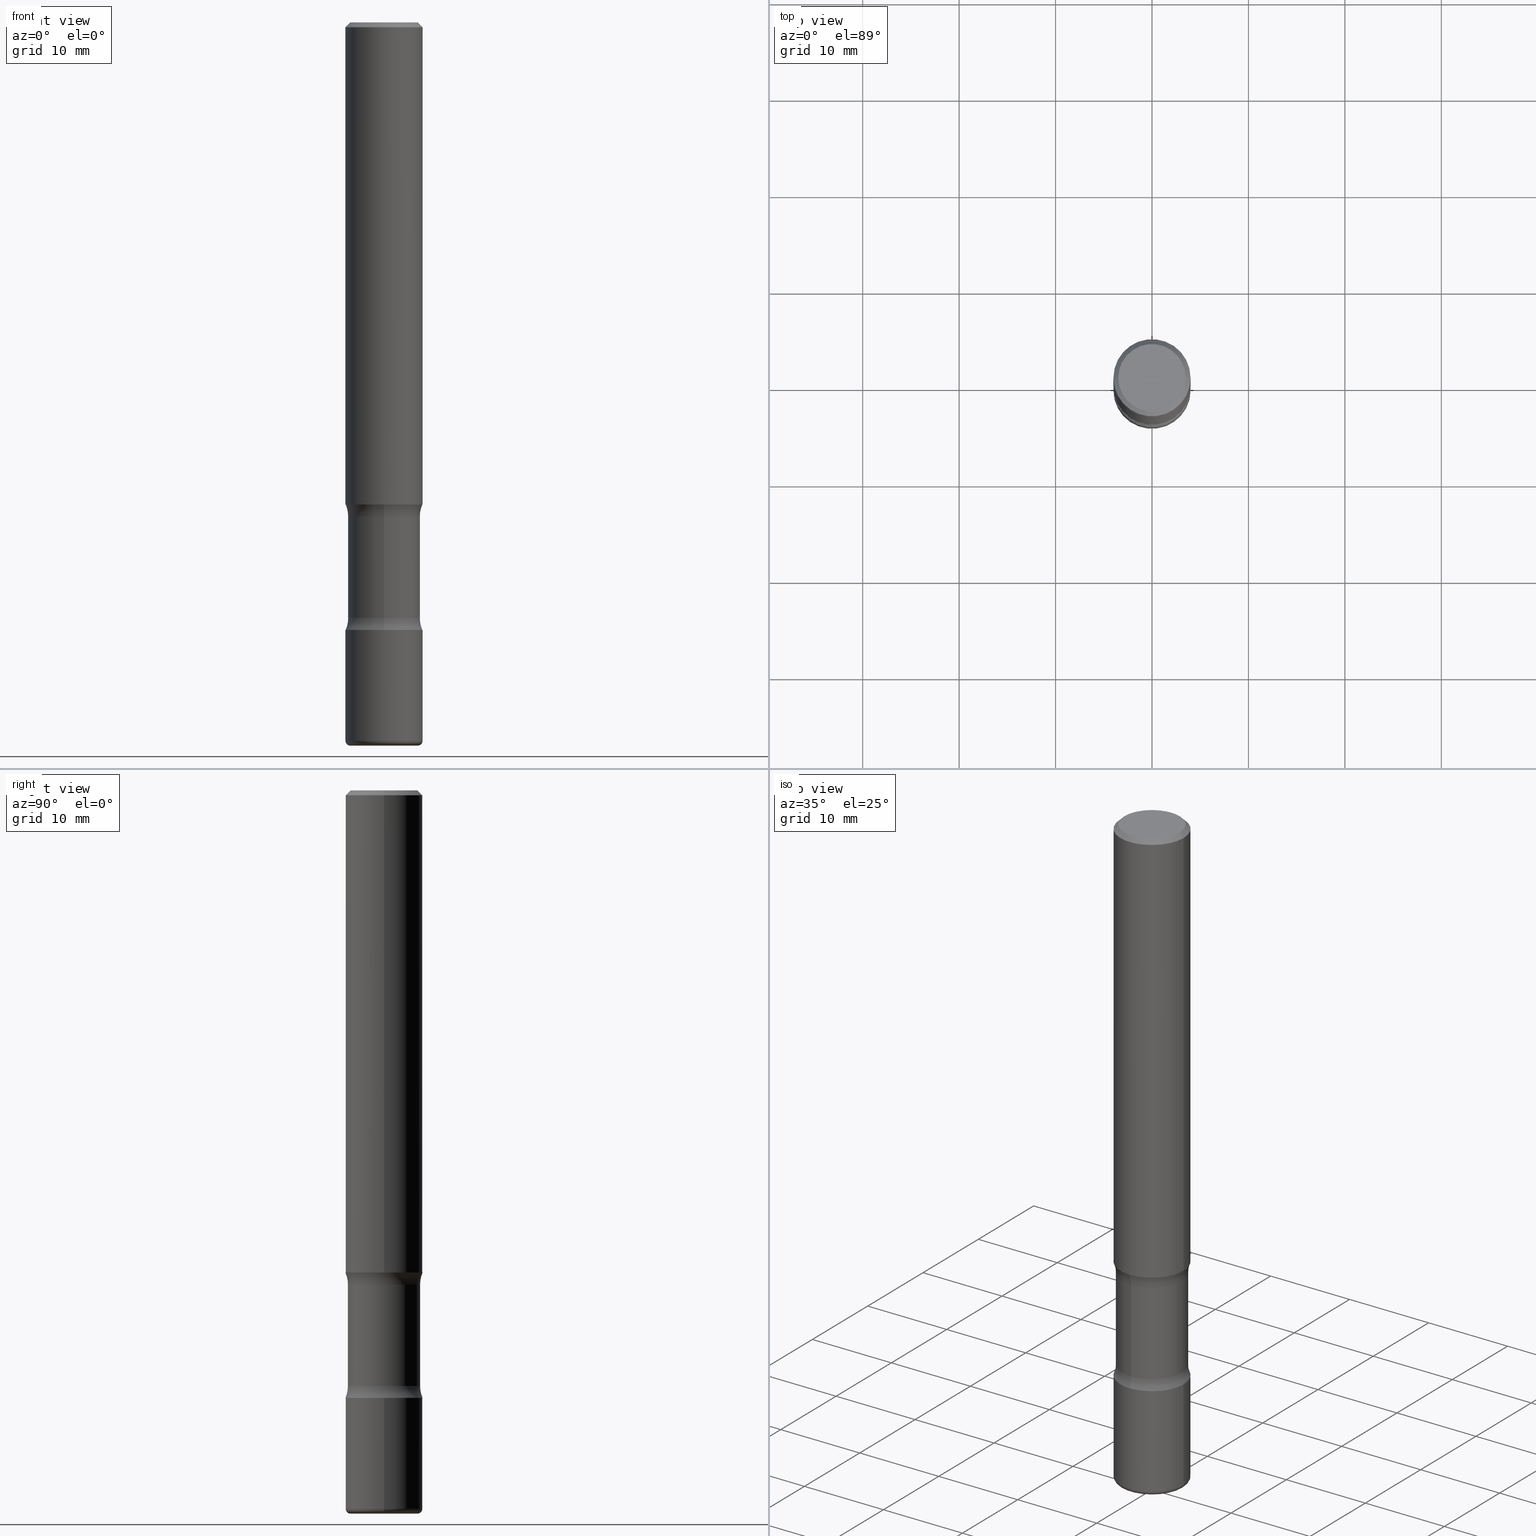
[diagram: canonical four-view strip — front | top / right | iso, engineering-drawing reading convention]
A machine part, canonical four-view strip (front | top / right | iso — engineering-drawing reading convention). The complete STEP part file that produces these views, byte-faithful:
ISO-10303-21;
HEADER;
FILE_DESCRIPTION (( 'STEP AP203' ),
    '1' );
FILE_NAME ('44794.STEP',
    '2024-03-02T03:23:53',
    ( '' ),
    ( '' ),
    'SwSTEP 2.0',
    'SolidWorks 2023',
    '' );
FILE_SCHEMA (( 'CONFIG_CONTROL_DESIGN' ));
ENDSEC;

DATA;
#1 = PRODUCT_RELATED_PRODUCT_CATEGORY ( 'detail', '', ( #180 ) ) ;
#2 = DIRECTION ( 'NONE',  ( 6.982962677686265133E-15, 1.000000000000000000, -3.707971487837479733E-15 ) ) ;
#3 = TOROIDAL_SURFACE ( 'NONE', #184, 0.1378000000000001724, 0.01969999999999987733 ) ;
#4 =( GEOMETRIC_REPRESENTATION_CONTEXT ( 3 ) GLOBAL_UNCERTAINTY_ASSIGNED_CONTEXT ( ( #381 ) ) GLOBAL_UNIT_ASSIGNED_CONTEXT ( ( #318, #111, #44 ) ) REPRESENTATION_CONTEXT ( 'NONE', 'WORKASPACE' ) );
#5 = DIRECTION ( 'NONE',  ( -6.982962677686266711E-15, -1.000000000000000000, 3.491481338843145583E-15 ) ) ;
#6 = EDGE_CURVE ( 'NONE', #47, #263, #469, .T. ) ;
#7 = DIRECTION ( 'NONE',  ( -1.000000000000000000, 6.982962677686265922E-15, -4.883557194083112340E-29 ) ) ;
#8 = ORIENTED_EDGE ( 'NONE', *, *, #343, .F. ) ;
#9 = DIRECTION ( 'NONE',  ( -2.445468806185136597E-29, 3.491481338843145583E-15, 1.000000000000000000 ) ) ;
#10 = CLOSED_SHELL ( 'NONE', ( #477, #241, #301, #361, #196, #174 ) ) ;
#11 = ORIENTED_EDGE ( 'NONE', *, *, #158, .F. ) ;
#12 = CIRCLE ( 'NONE', #479, 0.1250000000000000555 ) ;
#13 = ORGANIZATION ( 'UNSPECIFIED', 'UNSPECIFIED', '' ) ;
#14 = DIRECTION ( 'NONE',  ( 1.000000000000000000, -6.982962677686273021E-15, 4.883557194083115143E-29 ) ) ;
#15 = ORIENTED_EDGE ( 'NONE', *, *, #271, .T. ) ;
#16 = DIRECTION ( 'NONE',  ( -6.982962677686265922E-15, -1.000000000000000000, 0.000000000000000000 ) ) ;
#17 = ORIENTED_EDGE ( 'NONE', *, *, #146, .T. ) ;
#18 = CC_DESIGN_PERSON_AND_ORGANIZATION_ASSIGNMENT ( #415, #474, ( #423 ) ) ;
#19 = DIRECTION ( 'NONE',  ( 1.000000000000000000, -6.982962677686267499E-15, 4.876176775795935232E-29 ) ) ;
#20 = ORIENTED_EDGE ( 'NONE', *, *, #145, .F. ) ;
#21 = EDGE_CURVE ( 'NONE', #101, #216, #395, .T. ) ;
#22 = AXIS2_PLACEMENT_3D ( 'NONE', #517, #120, #287 ) ;
#23 = LOCAL_TIME ( 22, 23, 53.00000000000000000, #251 ) ;
#24 = CARTESIAN_POINT ( 'NONE',  ( 4.813905344975440714E-29, -6.872981015512730918E-15, -1.968499999999999694 ) ) ;
#25 = DIRECTION ( 'NONE',  ( 2.474888810202925163E-29, -3.449350218607033250E-15, -1.000000000000000000 ) ) ;
#26 = VERTEX_POINT ( 'NONE', #452 ) ;
#27 = CARTESIAN_POINT ( 'NONE',  ( 7.220980290903470182E-29, -1.030964609733603853E-14, -2.952799999999999869 ) ) ;
#28 = DIRECTION ( 'NONE',  ( 2.474888810202925163E-29, -3.449350218607033250E-15, -1.000000000000000000 ) ) ;
#29 = DIRECTION ( 'NONE',  ( 1.000000000000000000, -6.982962677686265922E-15, 4.876176775795935232E-29 ) ) ;
#30 = DIRECTION ( 'NONE',  ( 2.474888810202925163E-29, -3.449350218607033250E-15, -1.000000000000000000 ) ) ;
#31 = EDGE_CURVE ( 'NONE', #99, #401, #510, .T. ) ;
#32 = DIRECTION ( 'NONE',  ( 0.000000000000000000, 0.000000000000000000, 1.000000000000000000 ) ) ;
#33 = DIRECTION ( 'NONE',  ( 6.860497997771530774E-15, 1.000000000000000000, 0.000000000000000000 ) ) ;
#34 = PERSON_AND_ORGANIZATION ( #383, #13 ) ;
#35 = EDGE_CURVE ( 'NONE', #199, #47, #281, .T. ) ;
#36 = CARTESIAN_POINT ( 'NONE',  ( 7.172804555421624566E-29, -1.024086391496083050E-14, -2.933100000000000041 ) ) ;
#37 = EDGE_CURVE ( 'NONE', #199, #439, #192, .T. ) ;
#38 = DATE_AND_TIME ( #420, #126 ) ;
#39 = CIRCLE ( 'NONE', #440, 0.1575000000000001399 ) ;
#40 = AXIS2_PLACEMENT_3D ( 'NONE', #62, #239, #280 ) ;
#41 = CYLINDRICAL_SURFACE ( 'NONE', #396, 0.1473500000000000087 ) ;
#42 = VERTEX_POINT ( 'NONE', #112 ) ;
#43 = LINE ( 'NONE', #88, #431 ) ;
#44 =( NAMED_UNIT ( * ) SI_UNIT ( $, .STERADIAN. ) SOLID_ANGLE_UNIT ( ) );
#45 = DIRECTION ( 'NONE',  ( 2.474888810202925163E-29, -3.449350218607033250E-15, -1.000000000000000000 ) ) ;
#46 = EDGE_CURVE ( 'NONE', #496, #173, #520, .T. ) ;
#47 = VERTEX_POINT ( 'NONE', #461 ) ;
#48 = CARTESIAN_POINT ( 'NONE',  ( 1.901809885267903923E-15, 0.2723499999999929866, -2.017840424602957317 ) ) ;
#49 = AXIS2_PLACEMENT_3D ( 'NONE', #123, #211, #291 ) ;
#50 = FACE_OUTER_BOUND ( 'NONE', #273, .T. ) ;
#51 = ORIENTED_EDGE ( 'NONE', *, *, #424, .T. ) ;
#52 = PLANE ( 'NONE',  #422 ) ;
#53 = ORIENTED_EDGE ( 'NONE', *, *, #386, .F. ) ;
#54 = CARTESIAN_POINT ( 'NONE',  ( 0.1575000000000000289, -1.099816621735587283E-15, 7.679978421878599434E-30 ) ) ;
#55 = ORIENTED_EDGE ( 'NONE', *, *, #402, .F. ) ;
#56 = CIRCLE ( 'NONE', #141, 0.1575000000000001399 ) ;
#57 = AXIS2_PLACEMENT_3D ( 'NONE', #314, #324, #326 ) ;
#58 = DIRECTION ( 'NONE',  ( -6.982962677686265922E-15, -1.000000000000000000, 3.449350218607032856E-15 ) ) ;
#59 = EDGE_LOOP ( 'NONE', ( #310, #17, #220, #446 ) ) ;
#60 = CARTESIAN_POINT ( 'NONE',  ( 6.065740826861612418E-29, -8.660270312866537270E-15, -2.480399999999999494 ) ) ;
#61 = ORIENTED_EDGE ( 'NONE', *, *, #212, .T. ) ;
#62 = CARTESIAN_POINT ( 'NONE',  ( 4.934565814225900815E-29, -7.045252187264551691E-15, -2.017840424602956428 ) ) ;
#63 = DIRECTION ( 'NONE',  ( 2.474888810202925163E-29, -3.449350218607033250E-15, -1.000000000000000000 ) ) ;
#64 = CIRCLE ( 'NONE', #157, 0.01969999999999985998 ) ;
#65 = TOROIDAL_SURFACE ( 'NONE', #142, 0.2723500000000000365, 0.1250000000000000000 ) ;
#66 = CARTESIAN_POINT ( 'NONE',  ( 7.220980290903470182E-29, -1.030964609733603853E-14, -2.952799999999999869 ) ) ;
#67 = CARTESIAN_POINT ( 'NONE',  ( 6.065740826861612418E-29, -8.660270312866537270E-15, -2.480399999999999494 ) ) ;
#68 = EDGE_CURVE ( 'NONE', #216, #101, #227, .T. ) ;
#69 = CYLINDRICAL_SURFACE ( 'NONE', #547, 0.1575000000000000289 ) ;
#70 = DIRECTION ( 'NONE',  ( 2.474888810202925163E-29, -3.449350218607033250E-15, -1.000000000000000000 ) ) ;
#71 = PLANE ( 'NONE',  #490 ) ;
#72 = DIRECTION ( 'NONE',  ( 6.982962677686265133E-15, 1.000000000000000000, -3.707971487837480522E-15 ) ) ;
#73 = CIRCLE ( 'NONE', #375, 0.1473499999999999810 ) ;
#74 = DIRECTION ( 'NONE',  ( 1.000000000000000000, -6.982962677686266711E-15, 0.000000000000000000 ) ) ;
#75 = ORIENTED_EDGE ( 'NONE', *, *, #377, .F. ) ;
#76 = DATE_TIME_ROLE ( 'creation_date' ) ;
#77 = CARTESIAN_POINT ( 'NONE',  ( -0.1575000000000001399, -8.331462305091523914E-15, -2.480399999999999494 ) ) ;
#78 = PERSON_AND_ORGANIZATION_ROLE ( 'classification_officer' ) ;
#79 = DIRECTION ( 'NONE',  ( -2.445468806185136877E-29, 3.491481338843145188E-15, 1.000000000000000000 ) ) ;
#80 = EDGE_CURVE ( 'NONE', #439, #401, #480, .T. ) ;
#81 = AXIS2_PLACEMENT_3D ( 'NONE', #321, #226, #235 ) ;
#82 = APPROVAL_STATUS ( 'not_yet_approved' ) ;
#83 = VECTOR ( 'NONE', #79, 39.37007874015748143 ) ;
#84 = DIRECTION ( 'NONE',  ( -6.982962677686265922E-15, -1.000000000000000000, 0.000000000000000000 ) ) ;
#85 = MECHANICAL_CONTEXT ( 'NONE', #221, 'mechanical' ) ;
#86 = LINE ( 'NONE', #559, #320 ) ;
#87 = DATE_AND_TIME ( #373, #23 ) ;
#88 = CARTESIAN_POINT ( 'NONE',  ( 0.1574999999999999178, -1.150358061425878486E-15, -0.02000000000000000042 ) ) ;
#89 = DIMENSIONAL_EXPONENTS ( 1.000000000000000000, 0.000000000000000000, 0.000000000000000000, 0.000000000000000000, 0.000000000000000000, 0.000000000000000000, 0.000000000000000000 ) ;
#90 = ORIENTED_EDGE ( 'NONE', *, *, #6, .T. ) ;
#91 = DIRECTION ( 'NONE',  ( 2.474888810202925163E-29, -3.449350218607032856E-15, -1.000000000000000000 ) ) ;
#92 = CIRCLE ( 'NONE', #110, 0.01969999999999985998 ) ;
#93 = EDGE_LOOP ( 'NONE', ( #155, #305 ) ) ;
#94 = DIRECTION ( 'NONE',  ( -2.445468806185136877E-29, 3.491481338843145188E-15, 1.000000000000000000 ) ) ;
#95 = EDGE_LOOP ( 'NONE', ( #408, #144 ) ) ;
#96 = EDGE_CURVE ( 'NONE', #439, #199, #73, .T. ) ;
#97 = ADVANCED_FACE ( 'NONE', ( #109 ), #153, .F. ) ;
#98 = CARTESIAN_POINT ( 'NONE',  ( 9.601573681818610811E-16, 0.1374999999999999278, -4.779444278458821021E-16 ) ) ;
#99 = VERTEX_POINT ( 'NONE', #106 ) ;
#100 = CARTESIAN_POINT ( 'NONE',  ( 0.1374999999999999278, -1.046838268059731900E-15, 4.268512490107428597E-18 ) ) ;
#101 = VERTEX_POINT ( 'NONE', #448 ) ;
#102 = AXIS2_PLACEMENT_3D ( 'NONE', #265, #259, #131 ) ;
#103 = CARTESIAN_POINT ( 'NONE',  ( 4.813905344975440714E-29, -6.872981015512730918E-15, -1.968499999999999694 ) ) ;
#104 = ORIENTED_EDGE ( 'NONE', *, *, #96, .T. ) ;
#105 = PRODUCT_DEFINITION ( 'UNKNOWN', '', #423, #529 ) ;
#106 = CARTESIAN_POINT ( 'NONE',  ( 1.099816621735635798E-15, 0.1574999999999932565, -1.968500000000000361 ) ) ;
#107 = EDGE_CURVE ( 'NONE', #173, #496, #364, .T. ) ;
#108 = CARTESIAN_POINT ( 'NONE',  ( 0.1575000000000001676, -7.972797637248319976E-15, -1.968499999999999694 ) ) ;
#109 = FACE_OUTER_BOUND ( 'NONE', #93, .T. ) ;
#110 = AXIS2_PLACEMENT_3D ( 'NONE', #476, #311, #300 ) ;
#111 =( NAMED_UNIT ( * ) PLANE_ANGLE_UNIT ( ) SI_UNIT ( $, .RADIAN. ) );
#112 = CARTESIAN_POINT ( 'NONE',  ( -0.1374999999999999278, 9.950721815702923357E-16, 4.268512490093574228E-18 ) ) ;
#113 = APPLICATION_CONTEXT ( 'configuration controlled 3d designs of mechanical parts and assemblies' ) ;
#114 = CARTESIAN_POINT ( 'NONE',  ( 7.234878300801473340E-29, -1.028974335613649852E-14, -2.952799999999999869 ) ) ;
#115 = EDGE_LOOP ( 'NONE', ( #549, #15, #204, #346 ) ) ;
#116 = VERTEX_POINT ( 'NONE', #208 ) ;
#117 = AXIS2_PLACEMENT_3D ( 'NONE', #410, #233, #72 ) ;
#118 = COORDINATED_UNIVERSAL_TIME_OFFSET ( 5, 0, .BEHIND. ) ;
#119 = AXIS2_PLACEMENT_3D ( 'NONE', #66, #507, #447 ) ;
#120 = DIRECTION ( 'NONE',  ( -2.445468806185136597E-29, 3.491481338843145583E-15, 1.000000000000000000 ) ) ;
#121 = APPROVAL_ROLE ( '' ) ;
#122 = DIRECTION ( 'NONE',  ( -2.445468806185136597E-29, 3.491481338843145583E-15, 1.000000000000000000 ) ) ;
#123 = CARTESIAN_POINT ( 'NONE',  ( 0.000000000000000000, 0.000000000000000000, 0.000000000000000000 ) ) ;
#124 = PERSON_AND_ORGANIZATION ( #383, #13 ) ;
#125 = AXIS2_PLACEMENT_3D ( 'NONE', #24, #541, #147 ) ;
#126 = LOCAL_TIME ( 22, 23, 53.00000000000000000, #465 ) ;
#127 = DIRECTION ( 'NONE',  ( 0.7071067811865472397, -7.319954787623254468E-15, -0.7071067811865477948 ) ) ;
#128 = FACE_OUTER_BOUND ( 'NONE', #268, .T. ) ;
#129 = EDGE_LOOP ( 'NONE', ( #376, #8, #380, #51 ) ) ;
#130 = CARTESIAN_POINT ( 'NONE',  ( -1.868456629693017352E-15, -0.2723500000000085297, -2.431059575397042316 ) ) ;
#131 = DIRECTION ( 'NONE',  ( -1.000000000000000000, 6.982962677686266711E-15, 0.000000000000000000 ) ) ;
#132 = EDGE_CURVE ( 'NONE', #439, #263, #253, .T. ) ;
#133 = ORIENTED_EDGE ( 'NONE', *, *, #37, .T. ) ;
#134 = DIRECTION ( 'NONE',  ( 1.000000000000000000, -6.860497997771530774E-15, 4.841314837039559601E-29 ) ) ;
#135 = VERTEX_POINT ( 'NONE', #77 ) ;
#136 = CC_DESIGN_PERSON_AND_ORGANIZATION_ASSIGNMENT ( #552, #288, ( #423 ) ) ;
#137 = DIRECTION ( 'NONE',  ( 6.982962677686265922E-15, 1.000000000000000000, -3.449350218607033250E-15 ) ) ;
#138 = ORIENTED_EDGE ( 'NONE', *, *, #392, .F. ) ;
#139 = CARTESIAN_POINT ( 'NONE',  ( 0.1378000000000001724, -1.127189835432120758E-14, -2.952799999999999869 ) ) ;
#140 = EDGE_LOOP ( 'NONE', ( #492, #250 ) ) ;
#141 = AXIS2_PLACEMENT_3D ( 'NONE', #433, #309, #223 ) ;
#142 = AXIS2_PLACEMENT_3D ( 'NONE', #359, #25, #316 ) ;
#143 = DIRECTION ( 'NONE',  ( 2.438088387897960049E-29, -3.491481338843145188E-15, -1.000000000000000000 ) ) ;
#144 = ORIENTED_EDGE ( 'NONE', *, *, #482, .F. ) ;
#145 = EDGE_CURVE ( 'NONE', #298, #416, #64, .T. ) ;
#146 = EDGE_CURVE ( 'NONE', #173, #557, #86, .T. ) ;
#147 = DIRECTION ( 'NONE',  ( 1.000000000000000000, -6.982962677686267499E-15, 0.000000000000000000 ) ) ;
#148 = DIRECTION ( 'NONE',  ( 1.000000000000000000, -6.982962677686273021E-15, 4.883557194083115143E-29 ) ) ;
#149 = ORIENTED_EDGE ( 'NONE', *, *, #308, .F. ) ;
#150 = AXIS2_PLACEMENT_3D ( 'NONE', #283, #63, #414 ) ;
#151 = CIRCLE ( 'NONE', #57, 0.1574999999999999178 ) ;
#152 = DIRECTION ( 'NONE',  ( -1.000000000000000000, 6.982962677686265922E-15, -4.876176775795935793E-29 ) ) ;
#153 = PLANE ( 'NONE',  #292 ) ;
#154 = LENGTH_MEASURE_WITH_UNIT ( LENGTH_MEASURE( 0.02539999999999999897 ), #190 );
#155 = ORIENTED_EDGE ( 'NONE', *, *, #454, .T. ) ;
#156 = ORIENTED_EDGE ( 'NONE', *, *, #146, .F. ) ;
#157 = AXIS2_PLACEMENT_3D ( 'NONE', #206, #5, #388 ) ;
#158 = EDGE_CURVE ( 'NONE', #42, #557, #385, .T. ) ;
#159 = DATE_TIME_ROLE ( 'classification_date' ) ;
#160 = FACE_OUTER_BOUND ( 'NONE', #531, .T. ) ;
#161 = ORIENTED_EDGE ( 'NONE', *, *, #308, .T. ) ;
#162 = APPROVAL_DATE_TIME ( #38, #238 ) ;
#163 = CARTESIAN_POINT ( 'NONE',  ( 7.234878300801473340E-29, -1.028974335613649852E-14, -2.952799999999999869 ) ) ;
#164 = EDGE_LOOP ( 'NONE', ( #349, #179, #485, #360 ) ) ;
#165 = SECURITY_CLASSIFICATION_LEVEL ( 'unclassified' ) ;
#166 = DIRECTION ( 'NONE',  ( 1.000000000000000000, -6.982962677686265922E-15, 4.876176775795935793E-29 ) ) ;
#167 = CONICAL_SURFACE ( 'NONE', #200, 0.1574999999999999178, 0.7853981633974479459 ) ;
#168 = CARTESIAN_POINT ( 'NONE',  ( 4.890937612370273159E-31, -6.982962677686291609E-17, -0.02000000000000000042 ) ) ;
#169 = CARTESIAN_POINT ( 'NONE',  ( 7.172804555421624566E-29, -1.024086391496083050E-14, -2.933100000000000041 ) ) ;
#170 = EDGE_CURVE ( 'NONE', #199, #99, #12, .T. ) ;
#171 = CC_DESIGN_DATE_AND_TIME_ASSIGNMENT ( #560, #159, ( #293 ) ) ;
#172 = DIRECTION ( 'NONE',  ( 6.982962677686265133E-15, 1.000000000000000000, -3.469013325287950138E-15 ) ) ;
#173 = VERTEX_POINT ( 'NONE', #289 ) ;
#174 = ADVANCED_FACE ( 'NONE', ( #511 ), #430, .T. ) ;
#175 = DIRECTION ( 'NONE',  ( -2.445468806185136597E-29, 3.491481338843145583E-15, 1.000000000000000000 ) ) ;
#176 = AXIS2_PLACEMENT_3D ( 'NONE', #327, #70, #502 ) ;
#177 = ORIENTED_EDGE ( 'NONE', *, *, #107, .T. ) ;
#178 = DIRECTION ( 'NONE',  ( 2.474888810202925163E-29, -3.449350218607033250E-15, -1.000000000000000000 ) ) ;
#179 = ORIENTED_EDGE ( 'NONE', *, *, #80, .T. ) ;
#180 = PRODUCT ( '44794', '44794', '', ( #85 ) ) ;
#181 = FACE_OUTER_BOUND ( 'NONE', #365, .T. ) ;
#182 = ORIENTED_EDGE ( 'NONE', *, *, #247, .T. ) ;
#183 = VERTEX_POINT ( 'NONE', #252 ) ;
#184 = AXIS2_PLACEMENT_3D ( 'NONE', #169, #347, #14 ) ;
#185 = APPROVAL_PERSON_ORGANIZATION ( #34, #254, #202 ) ;
#186 = ORIENTED_EDGE ( 'NONE', *, *, #247, .F. ) ;
#187 = EDGE_CURVE ( 'NONE', #298, #116, #356, .T. ) ;
#188 = CARTESIAN_POINT ( 'NONE',  ( -1.045711407310277305E-15, -0.1473500000000070587, -2.017840424602955984 ) ) ;
#189 = ORIENTED_EDGE ( 'NONE', *, *, #145, .T. ) ;
#190 =( LENGTH_UNIT ( ) NAMED_UNIT ( * ) SI_UNIT ( $, .METRE. ) );
#191 = DIRECTION ( 'NONE',  ( 1.000000000000000000, -6.860497997771530774E-15, 4.841314837039559601E-29 ) ) ;
#192 = CIRCLE ( 'NONE', #117, 0.1473499999999999810 ) ;
#193 = AXIS2_PLACEMENT_3D ( 'NONE', #262, #400, #438 ) ;
#194 = FACE_OUTER_BOUND ( 'NONE', #404, .T. ) ;
#195 = DIRECTION ( 'NONE',  ( 6.982962677686265133E-15, 1.000000000000000000, -3.707971487837480522E-15 ) ) ;
#196 = ADVANCED_FACE ( 'NONE', ( #519 ), #464, .F. ) ;
#197 = DIRECTION ( 'NONE',  ( 1.000000000000000000, -6.982962677686267499E-15, 0.000000000000000000 ) ) ;
#198 = CARTESIAN_POINT ( 'NONE',  ( 0.1575000000000001399, -1.099816621735587875E-15, 7.679978421878605039E-30 ) ) ;
#199 = VERTEX_POINT ( 'NONE', #473 ) ;
#200 = AXIS2_PLACEMENT_3D ( 'NONE', #168, #203, #522 ) ;
#201 = AXIS2_PLACEMENT_3D ( 'NONE', #282, #459, #234 ) ;
#202 = APPROVAL_ROLE ( '' ) ;
#203 = DIRECTION ( 'NONE',  ( 2.445468806185136597E-29, -3.491481338843145583E-15, -1.000000000000000000 ) ) ;
#204 = ORIENTED_EDGE ( 'NONE', *, *, #454, .F. ) ;
#205 = EDGE_CURVE ( 'NONE', #416, #533, #297, .T. ) ;
#206 = CARTESIAN_POINT ( 'NONE',  ( 0.1378000000000001724, -1.120311617194599955E-14, -2.933100000000000041 ) ) ;
#207 = PERSON_AND_ORGANIZATION ( #383, #13 ) ;
#208 = CARTESIAN_POINT ( 'NONE',  ( -0.1378000000000001724, -9.226138656798647747E-15, -2.952799999999999869 ) ) ;
#209 = AXIS2_PLACEMENT_3D ( 'NONE', #351, #175, #532 ) ;
#210 = AXIS2_PLACEMENT_3D ( 'NONE', #389, #445, #172 ) ;
#211 = DIRECTION ( 'NONE',  ( -2.445468806185136597E-29, 3.491481338843145583E-15, 1.000000000000000000 ) ) ;
#212 = EDGE_CURVE ( 'NONE', #183, #416, #236, .T. ) ;
#213 = CARTESIAN_POINT ( 'NONE',  ( 1.901809885267914178E-15, 0.2723499999999915433, -2.431059575397044092 ) ) ;
#214 = ORIENTED_EDGE ( 'NONE', *, *, #386, .T. ) ;
#215 = DIRECTION ( 'NONE',  ( -1.000000000000000000, 6.982962677686265922E-15, -4.876176775795935793E-29 ) ) ;
#216 = VERTEX_POINT ( 'NONE', #426 ) ;
#217 = EDGE_CURVE ( 'NONE', #416, #183, #39, .T. ) ;
#218 = AXIS2_PLACEMENT_3D ( 'NONE', #249, #122, #336 ) ;
#219 = CC_DESIGN_APPROVAL ( #254, ( #423 ) ) ;
#220 = ORIENTED_EDGE ( 'NONE', *, *, #506, .F. ) ;
#221 = APPLICATION_CONTEXT ( 'configuration controlled 3d designs of mechanical parts and assemblies' ) ;
#222 = EDGE_LOOP ( 'NONE', ( #333, #243 ) ) ;
#223 = DIRECTION ( 'NONE',  ( 1.000000000000000000, -6.982962677686268288E-15, 0.000000000000000000 ) ) ;
#224 = ORIENTED_EDGE ( 'NONE', *, *, #21, .T. ) ;
#225 = DIRECTION ( 'NONE',  ( -2.445468806185136597E-29, 3.491481338843145583E-15, 1.000000000000000000 ) ) ;
#226 = DIRECTION ( 'NONE',  ( 2.474888810202925163E-29, -3.449350218607033250E-15, -1.000000000000000000 ) ) ;
#227 = CIRCLE ( 'NONE', #255, 0.1575000000000001399 ) ;
#228 = CC_DESIGN_APPROVAL ( #238, ( #293 ) ) ;
#229 = ADVANCED_FACE ( 'NONE', ( #160 ), #41, .T. ) ;
#230 = FACE_OUTER_BOUND ( 'NONE', #317, .T. ) ;
#231 = EDGE_LOOP ( 'NONE', ( #53, #515, #444, #90 ) ) ;
#232 = DIRECTION ( 'NONE',  ( -2.445468806185136597E-29, 3.491481338843145583E-15, 1.000000000000000000 ) ) ;
#233 = DIRECTION ( 'NONE',  ( 2.474888810202925163E-29, -3.449350218607033250E-15, -1.000000000000000000 ) ) ;
#234 = DIRECTION ( 'NONE',  ( 1.000000000000000000, -6.982962677686268288E-15, 0.000000000000000000 ) ) ;
#235 = DIRECTION ( 'NONE',  ( 6.982962677686266711E-15, 1.000000000000000000, -3.707971487837479733E-15 ) ) ;
#236 = CIRCLE ( 'NONE', #545, 0.1575000000000001399 ) ;
#237 = AXIS2_PLACEMENT_3D ( 'NONE', #213, #7, #16 ) ;
#238 = APPROVAL ( #82, 'UNSPECIFIED' ) ;
#239 = DIRECTION ( 'NONE',  ( 2.474888810202925163E-29, -3.449350218607033250E-15, -1.000000000000000000 ) ) ;
#240 = DIRECTION ( 'NONE',  ( 6.982962677686265133E-15, 1.000000000000000000, -3.469013325287950138E-15 ) ) ;
#241 = ADVANCED_FACE ( 'NONE', ( #514 ), #167, .T. ) ;
#242 = DIRECTION ( 'NONE',  ( -1.000000000000000000, 6.982962677686265922E-15, -4.883557194083112340E-29 ) ) ;
#243 = ORIENTED_EDGE ( 'NONE', *, *, #377, .T. ) ;
#244 = APPLICATION_PROTOCOL_DEFINITION ( 'international standard', 'config_control_design', 1994, #113 ) ;
#245 = CARTESIAN_POINT ( 'NONE',  ( -0.1574999999999999178, 1.029986994958723590E-15, -0.02000000000000000042 ) ) ;
#246 = CONICAL_SURFACE ( 'NONE', #102, 0.1574999999999999178, 0.7853981633974479459 ) ;
#247 = EDGE_CURVE ( 'NONE', #263, #47, #449, .T. ) ;
#248 = CIRCLE ( 'NONE', #201, 0.1575000000000001399 ) ;
#249 = CARTESIAN_POINT ( 'NONE',  ( 7.220980290903470182E-29, -1.030964609733603853E-14, -2.952799999999999869 ) ) ;
#250 = ORIENTED_EDGE ( 'NONE', *, *, #107, .F. ) ;
#251 = COORDINATED_UNIVERSAL_TIME_OFFSET ( 5, 0, .BEHIND. ) ;
#252 = CARTESIAN_POINT ( 'NONE',  ( -0.1575000000000000844, -9.121759106138672895E-15, -2.933100000000000041 ) ) ;
#253 = LINE ( 'NONE', #340, #338 ) ;
#254 = APPROVAL ( #417, 'UNSPECIFIED' ) ;
#255 = AXIS2_PLACEMENT_3D ( 'NONE', #67, #28, #240 ) ;
#256 = AXIS2_PLACEMENT_3D ( 'NONE', #114, #538, #455 ) ;
#257 = PLANE ( 'NONE',  #488 ) ;
#258 = EDGE_LOOP ( 'NONE', ( #156, #177, #535, #270 ) ) ;
#259 = DIRECTION ( 'NONE',  ( 2.445468806185136597E-29, -3.491481338843145583E-15, -1.000000000000000000 ) ) ;
#260 = ORIENTED_EDGE ( 'NONE', *, *, #264, .T. ) ;
#261 = ADVANCED_FACE ( 'NONE', ( #128 ), #475, .T. ) ;
#262 = CARTESIAN_POINT ( 'NONE',  ( 5.945080357611152317E-29, -8.487999141114716497E-15, -2.431059575397043204 ) ) ;
#263 = VERTEX_POINT ( 'NONE', #468 ) ;
#264 = EDGE_CURVE ( 'NONE', #390, #26, #43, .T. ) ;
#265 = CARTESIAN_POINT ( 'NONE',  ( 4.890937612370273159E-31, -6.982962677686291609E-17, -0.02000000000000000042 ) ) ;
#266 = TOROIDAL_SURFACE ( 'NONE', #470, 0.2723499999999999810, 0.1250000000000000555 ) ;
#267 = CC_DESIGN_SECURITY_CLASSIFICATION ( #293, ( #423 ) ) ;
#268 = EDGE_LOOP ( 'NONE', ( #434, #61, #315, #523 ) ) ;
#269 = DIRECTION ( 'NONE',  ( 2.438088387897960049E-29, -3.491481338843145188E-15, -1.000000000000000000 ) ) ;
#270 = ORIENTED_EDGE ( 'NONE', *, *, #424, .F. ) ;
#271 = EDGE_CURVE ( 'NONE', #183, #135, #345, .T. ) ;
#272 = DIRECTION ( 'NONE',  ( -2.445468806185136597E-29, 3.491481338843145583E-15, 1.000000000000000000 ) ) ;
#273 = EDGE_LOOP ( 'NONE', ( #483, #214, #182, #138 ) ) ;
#274 = CYLINDRICAL_SURFACE ( 'NONE', #256, 0.1473500000000000087 ) ;
#275 = VECTOR ( 'NONE', #94, 39.37007874015748143 ) ;
#276 = ORIENTED_EDGE ( 'NONE', *, *, #212, .F. ) ;
#277 = LOCAL_TIME ( 22, 23, 53.00000000000000000, #384 ) ;
#278 = DIRECTION ( 'NONE',  ( -2.445468806185136597E-29, 3.491481338843145583E-15, 1.000000000000000000 ) ) ;
#279 = ADVANCED_FACE ( 'NONE', ( #484 ), #266, .F. ) ;
#280 = DIRECTION ( 'NONE',  ( 6.982962677686265922E-15, 1.000000000000000000, -3.449350218607033250E-15 ) ) ;
#281 = LINE ( 'NONE', #494, #330 ) ;
#282 = CARTESIAN_POINT ( 'NONE',  ( 6.065740826861612418E-29, -8.660270312866537270E-15, -2.480399999999999494 ) ) ;
#283 = CARTESIAN_POINT ( 'NONE',  ( 6.065740826861612418E-29, -8.660270312866537270E-15, -2.480399999999999494 ) ) ;
#284 = CIRCLE ( 'NONE', #357, 0.1250000000000000000 ) ;
#285 = AXIS2_PLACEMENT_3D ( 'NONE', #286, #32, #516 ) ;
#286 = CARTESIAN_POINT ( 'NONE',  ( 0.000000000000000000, 0.000000000000000000, 0.000000000000000000 ) ) ;
#287 = DIRECTION ( 'NONE',  ( 1.000000000000000000, -6.982962677686267499E-15, 4.876176775795935232E-29 ) ) ;
#288 = PERSON_AND_ORGANIZATION_ROLE ( 'design_supplier' ) ;
#289 = CARTESIAN_POINT ( 'NONE',  ( -0.1575000000000001676, -2.352300512322635166E-15, -1.968499999999999694 ) ) ;
#290 = EDGE_CURVE ( 'NONE', #496, #26, #491, .T. ) ;
#291 = DIRECTION ( 'NONE',  ( 1.000000000000000000, -6.982962677686265922E-15, 4.876176775795935232E-29 ) ) ;
#292 = AXIS2_PLACEMENT_3D ( 'NONE', #372, #325, #505 ) ;
#293 = SECURITY_CLASSIFICATION ( '', '', #165 ) ;
#294 = PERSON_AND_ORGANIZATION_ROLE ( 'design_owner' ) ;
#295 = DIRECTION ( 'NONE',  ( -0.7071067811865472397, 2.468850131082253905E-15, -0.7071067811865477948 ) ) ;
#296 = PERSON_AND_ORGANIZATION ( #383, #13 ) ;
#297 = LINE ( 'NONE', #198, #83 ) ;
#298 = VERTEX_POINT ( 'NONE', #139 ) ;
#299 = ADVANCED_BREP_SHAPE_REPRESENTATION ( '44794', ( #344, #350, #341, #285 ), #4 ) ;
#300 = DIRECTION ( 'NONE',  ( -1.000000000000000000, 7.105427357600978193E-15, 0.000000000000000000 ) ) ;
#301 = ADVANCED_FACE ( 'NONE', ( #534 ), #246, .T. ) ;
#302 = VECTOR ( 'NONE', #295, 39.37007874015748143 ) ;
#303 = AXIS2_PLACEMENT_3D ( 'NONE', #457, #225, #74 ) ;
#304 = PLANE ( 'NONE',  #405 ) ;
#305 = ORIENTED_EDGE ( 'NONE', *, *, #337, .T. ) ;
#306 = DIRECTION ( 'NONE',  ( 6.860497997771530774E-15, 1.000000000000000000, 0.000000000000000000 ) ) ;
#307 = ORIENTED_EDGE ( 'NONE', *, *, #68, .T. ) ;
#308 = EDGE_CURVE ( 'NONE', #116, #183, #92, .T. ) ;
#309 = DIRECTION ( 'NONE',  ( -2.445468806185136597E-29, 3.491481338843145583E-15, 1.000000000000000000 ) ) ;
#310 = ORIENTED_EDGE ( 'NONE', *, *, #46, .T. ) ;
#311 = DIRECTION ( 'NONE',  ( 7.105427357601001859E-15, 1.000000000000000000, -3.491481338843145583E-15 ) ) ;
#312 = AXIS2_PLACEMENT_3D ( 'NONE', #548, #278, #197 ) ;
#313 = ORIENTED_EDGE ( 'NONE', *, *, #132, .F. ) ;
#314 = CARTESIAN_POINT ( 'NONE',  ( 4.890937612370273159E-31, -6.982962677686291609E-17, -0.02000000000000000042 ) ) ;
#315 = ORIENTED_EDGE ( 'NONE', *, *, #205, .T. ) ;
#316 = DIRECTION ( 'NONE',  ( 6.982962677686265922E-15, 1.000000000000000000, -3.449350218607033250E-15 ) ) ;
#317 = EDGE_LOOP ( 'NONE', ( #133, #352, #394, #486 ) ) ;
#318 =( CONVERSION_BASED_UNIT ( 'INCH', #154 ) LENGTH_UNIT ( ) NAMED_UNIT ( #89 ) );
#319 = CLOSED_SHELL ( 'NONE', ( #442, #391, #279, #497, #348, #323, #540, #229 ) ) ;
#320 = VECTOR ( 'NONE', #329, 39.37007874015748143 ) ;
#321 = CARTESIAN_POINT ( 'NONE',  ( 5.943628762121094077E-29, -8.490077908476165751E-15, -2.431059575397043204 ) ) ;
#322 = TOROIDAL_SURFACE ( 'NONE', #40, 0.2723499999999999810, 0.1250000000000000555 ) ;
#323 = ADVANCED_FACE ( 'NONE', ( #181 ), #304, .F. ) ;
#324 = DIRECTION ( 'NONE',  ( -2.445468806185136597E-29, 3.491481338843145583E-15, 1.000000000000000000 ) ) ;
#325 = DIRECTION ( 'NONE',  ( 2.438088387897960049E-29, -3.491481338843145188E-15, -1.000000000000000000 ) ) ;
#326 = DIRECTION ( 'NONE',  ( 1.000000000000000000, -6.982962677686266711E-15, 0.000000000000000000 ) ) ;
#327 = CARTESIAN_POINT ( 'NONE',  ( 4.798845244918734808E-29, -6.894547935961596556E-15, -1.968499999999999694 ) ) ;
#328 = APPROVAL_DATE_TIME ( #558, #368 ) ;
#329 = DIRECTION ( 'NONE',  ( -2.445468806185136877E-29, 3.491481338843145188E-15, 1.000000000000000000 ) ) ;
#330 = VECTOR ( 'NONE', #508, 39.37007874015748143 ) ;
#331 = APPROVAL_STATUS ( 'not_yet_approved' ) ;
#332 = DIRECTION ( 'NONE',  ( 2.474888810202925163E-29, -3.449350218607033250E-15, -1.000000000000000000 ) ) ;
#333 = ORIENTED_EDGE ( 'NONE', *, *, #343, .T. ) ;
#334 = DIRECTION ( 'NONE',  ( 6.982962677686266711E-15, 1.000000000000000000, -3.707971487837479733E-15 ) ) ;
#335 = CALENDAR_DATE ( 2024, 1, 3 ) ;
#336 = DIRECTION ( 'NONE',  ( 1.000000000000000000, -6.982962677686271444E-15, 0.000000000000000000 ) ) ;
#337 = EDGE_CURVE ( 'NONE', #135, #533, #56, .T. ) ;
#338 = VECTOR ( 'NONE', #379, 39.37007874015748143 ) ;
#339 = AXIS2_PLACEMENT_3D ( 'NONE', #407, #409, #29 ) ;
#340 = CARTESIAN_POINT ( 'NONE',  ( -1.010894379971562693E-15, -0.1473500000000103061, -2.952799999999998981 ) ) ;
#341 = MANIFOLD_SOLID_BREP ( 'Body-Move/Copy2[4]', #319 ) ;
#342 = DIRECTION ( 'NONE',  ( -2.445468806185136877E-29, 3.491481338843145188E-15, 1.000000000000000000 ) ) ;
#343 = EDGE_CURVE ( 'NONE', #42, #390, #460, .T. ) ;
#344 = MANIFOLD_SOLID_BREP ( 'Body-Move/Copy2[1]', #412 ) ;
#345 = LINE ( 'NONE', #443, #536 ) ;
#346 = ORIENTED_EDGE ( 'NONE', *, *, #205, .F. ) ;
#347 = DIRECTION ( 'NONE',  ( -2.445468806185136597E-29, 3.491481338843145583E-15, 1.000000000000000000 ) ) ;
#348 = ADVANCED_FACE ( 'NONE', ( #398 ), #52, .F. ) ;
#349 = ORIENTED_EDGE ( 'NONE', *, *, #96, .F. ) ;
#350 = MANIFOLD_SOLID_BREP ( 'Body-Move/Copy2[2]', #10 ) ;
#351 = CARTESIAN_POINT ( 'NONE',  ( -1.043851414335219820E-46, 1.490343170380447200E-32, 4.268512490100411279E-18 ) ) ;
#352 = ORIENTED_EDGE ( 'NONE', *, *, #132, .T. ) ;
#353 = CARTESIAN_POINT ( 'NONE',  ( -1.080528434648969237E-15, -0.1575000000000070233, -1.968499999999999472 ) ) ;
#354 = ORIENTED_EDGE ( 'NONE', *, *, #35, .T. ) ;
#355 = FACE_OUTER_BOUND ( 'NONE', #95, .T. ) ;
#356 = CIRCLE ( 'NONE', #218, 0.1378000000000001724 ) ;
#357 = AXIS2_PLACEMENT_3D ( 'NONE', #130, #134, #306 ) ;
#358 = EDGE_LOOP ( 'NONE', ( #399, #161, #539, #20 ) ) ;
#359 = CARTESIAN_POINT ( 'NONE',  ( 5.945080357611152317E-29, -8.487999141114716497E-15, -2.431059575397043204 ) ) ;
#360 = ORIENTED_EDGE ( 'NONE', *, *, #170, .F. ) ;
#361 = ADVANCED_FACE ( 'NONE', ( #530 ), #257, .F. ) ;
#362 = FACE_OUTER_BOUND ( 'NONE', #115, .T. ) ;
#363 = ORIENTED_EDGE ( 'NONE', *, *, #31, .F. ) ;
#364 = CIRCLE ( 'NONE', #125, 0.1575000000000001676 ) ;
#365 = EDGE_LOOP ( 'NONE', ( #307, #224 ) ) ;
#366 = ADVANCED_FACE ( 'NONE', ( #393 ), #3, .T. ) ;
#367 = LOCAL_TIME ( 22, 23, 53.00000000000000000, #425 ) ;
#368 = APPROVAL ( #331, 'UNSPECIFIED' ) ;
#369 = FACE_OUTER_BOUND ( 'NONE', #358, .T. ) ;
#370 = CARTESIAN_POINT ( 'NONE',  ( 4.920957309659253149E-29, -7.064740340351969652E-15, -2.017840424602956428 ) ) ;
#371 = PERSON_AND_ORGANIZATION ( #383, #13 ) ;
#372 = CARTESIAN_POINT ( 'NONE',  ( 6.065740826861612418E-29, -8.660270312866537270E-15, -2.480399999999999494 ) ) ;
#373 = CALENDAR_DATE ( 2024, 1, 3 ) ;
#374 = DIRECTION ( 'NONE',  ( -2.445468806185136597E-29, 3.491481338843145583E-15, 1.000000000000000000 ) ) ;
#375 = AXIS2_PLACEMENT_3D ( 'NONE', #370, #30, #195 ) ;
#376 = ORIENTED_EDGE ( 'NONE', *, *, #264, .F. ) ;
#377 = EDGE_CURVE ( 'NONE', #390, #42, #387, .T. ) ;
#378 = SHAPE_DEFINITION_REPRESENTATION ( #487, #299 ) ;
#379 = DIRECTION ( 'NONE',  ( 2.474888810202925163E-29, -3.449350218607032856E-15, -1.000000000000000000 ) ) ;
#380 = ORIENTED_EDGE ( 'NONE', *, *, #158, .T. ) ;
#381 = UNCERTAINTY_MEASURE_WITH_UNIT (LENGTH_MEASURE( 1.000000000000000082E-05 ), #318, 'distance_accuracy_value', 'NONE');
#382 = CARTESIAN_POINT ( 'NONE',  ( 4.813905344975440714E-29, -6.872981015512730918E-15, -1.968499999999999694 ) ) ;
#383 = PERSON ( 'UNSPECIFIED', 'UNSPECIFIED', 'UNSPECIFIED', ('UNSPECIFIED'), ('UNSPECIFIED'), ('UNSPECIFIED') ) ;
#384 = COORDINATED_UNIVERSAL_TIME_OFFSET ( 5, 0, .BEHIND. ) ;
#385 = LINE ( 'NONE', #245, #302 ) ;
#386 = EDGE_CURVE ( 'NONE', #101, #263, #284, .T. ) ;
#387 = CIRCLE ( 'NONE', #209, 0.1374999999999999278 ) ;
#388 = DIRECTION ( 'NONE',  ( 1.000000000000000000, -6.982962677686279332E-15, 0.000000000000000000 ) ) ;
#389 = CARTESIAN_POINT ( 'NONE',  ( 4.798845244918734808E-29, -6.894547935961596556E-15, -1.968499999999999694 ) ) ;
#390 = VERTEX_POINT ( 'NONE', #100 ) ;
#391 = ADVANCED_FACE ( 'NONE', ( #50 ), #441, .F. ) ;
#392 = EDGE_CURVE ( 'NONE', #216, #47, #451, .T. ) ;
#393 = FACE_OUTER_BOUND ( 'NONE', #478, .T. ) ;
#394 = ORIENTED_EDGE ( 'NONE', *, *, #6, .F. ) ;
#395 = CIRCLE ( 'NONE', #150, 0.1575000000000001399 ) ;
#396 = AXIS2_PLACEMENT_3D ( 'NONE', #163, #332, #2 ) ;
#397 = CIRCLE ( 'NONE', #210, 0.1575000000000001399 ) ;
#398 = FACE_OUTER_BOUND ( 'NONE', #527, .T. ) ;
#399 = ORIENTED_EDGE ( 'NONE', *, *, #187, .T. ) ;
#400 = DIRECTION ( 'NONE',  ( 2.474888810202925163E-29, -3.449350218607033250E-15, -1.000000000000000000 ) ) ;
#401 = VERTEX_POINT ( 'NONE', #353 ) ;
#402 = EDGE_CURVE ( 'NONE', #401, #99, #397, .T. ) ;
#403 = DIRECTION ( 'NONE',  ( 1.000000000000000000, -6.982962677686265922E-15, 4.876173381029102845E-29 ) ) ;
#404 = EDGE_LOOP ( 'NONE', ( #437, #551, #525, #456 ) ) ;
#405 = AXIS2_PLACEMENT_3D ( 'NONE', #60, #435, #58 ) ;
#406 = ORIENTED_EDGE ( 'NONE', *, *, #506, .T. ) ;
#407 = CARTESIAN_POINT ( 'NONE',  ( 0.000000000000000000, 0.000000000000000000, 0.000000000000000000 ) ) ;
#408 = ORIENTED_EDGE ( 'NONE', *, *, #187, .F. ) ;
#409 = DIRECTION ( 'NONE',  ( -2.445468806185136597E-29, 3.491481338843145583E-15, 1.000000000000000000 ) ) ;
#410 = CARTESIAN_POINT ( 'NONE',  ( 4.920957309659253149E-29, -7.064740340351969652E-15, -2.017840424602956428 ) ) ;
#411 = FACE_OUTER_BOUND ( 'NONE', #59, .T. ) ;
#412 = CLOSED_SHELL ( 'NONE', ( #489, #498, #543, #366, #261, #97 ) ) ;
#413 = AXIS2_PLACEMENT_3D ( 'NONE', #481, #9, #403 ) ;
#414 = DIRECTION ( 'NONE',  ( 6.982962677686265133E-15, 1.000000000000000000, -3.469013325287950138E-15 ) ) ;
#415 = PERSON_AND_ORGANIZATION ( #383, #13 ) ;
#416 = VERTEX_POINT ( 'NONE', #495 ) ;
#417 = APPROVAL_STATUS ( 'not_yet_approved' ) ;
#418 = DIRECTION ( 'NONE',  ( 1.000000000000000000, -6.982962677686268288E-15, 0.000000000000000000 ) ) ;
#419 = ORIENTED_EDGE ( 'NONE', *, *, #482, .T. ) ;
#420 = CALENDAR_DATE ( 2024, 1, 3 ) ;
#421 = CARTESIAN_POINT ( 'NONE',  ( 7.172804555421624566E-29, -1.024086391496083050E-14, -2.933100000000000041 ) ) ;
#422 = AXIS2_PLACEMENT_3D ( 'NONE', #103, #91, #524 ) ;
#423 = PRODUCT_DEFINITION_FORMATION_WITH_SPECIFIED_SOURCE ( 'ANY', '', #180, .NOT_KNOWN. ) ;
#424 = EDGE_CURVE ( 'NONE', #557, #26, #151, .T. ) ;
#425 = COORDINATED_UNIVERSAL_TIME_OFFSET ( 5, 0, .BEHIND. ) ;
#426 = CARTESIAN_POINT ( 'NONE',  ( 1.099816621735648420E-15, 0.1574999999999914524, -2.480399999999999938 ) ) ;
#427 = DATE_AND_TIME ( #467, #537 ) ;
#428 = CARTESIAN_POINT ( 'NONE',  ( 5.943628762121094077E-29, -8.490077908476165751E-15, -2.431059575397043204 ) ) ;
#429 = CC_DESIGN_DATE_AND_TIME_ASSIGNMENT ( #427, #76, ( #105 ) ) ;
#430 = CYLINDRICAL_SURFACE ( 'NONE', #22, 0.1575000000000000289 ) ;
#431 = VECTOR ( 'NONE', #127, 39.37007874015748143 ) ;
#432 = TOROIDAL_SURFACE ( 'NONE', #512, 0.1378000000000001724, 0.01969999999999987733 ) ;
#433 = CARTESIAN_POINT ( 'NONE',  ( 6.065740826861612418E-29, -8.660270312866537270E-15, -2.480399999999999494 ) ) ;
#434 = ORIENTED_EDGE ( 'NONE', *, *, #271, .F. ) ;
#435 = DIRECTION ( 'NONE',  ( -2.474888810202925163E-29, 3.449350218607032856E-15, 1.000000000000000000 ) ) ;
#436 = CC_DESIGN_PERSON_AND_ORGANIZATION_ASSIGNMENT ( #296, #509, ( #105 ) ) ;
#437 = ORIENTED_EDGE ( 'NONE', *, *, #80, .F. ) ;
#438 = DIRECTION ( 'NONE',  ( 6.982962677686265922E-15, 1.000000000000000000, -3.449350218607033250E-15 ) ) ;
#439 = VERTEX_POINT ( 'NONE', #188 ) ;
#440 = AXIS2_PLACEMENT_3D ( 'NONE', #36, #374, #555 ) ;
#441 = TOROIDAL_SURFACE ( 'NONE', #193, 0.2723500000000000365, 0.1250000000000000000 ) ;
#442 = ADVANCED_FACE ( 'NONE', ( #230 ), #274, .T. ) ;
#443 = CARTESIAN_POINT ( 'NONE',  ( -0.1575000000000001399, 1.119104808822158787E-15, -7.747322767151482590E-30 ) ) ;
#444 = ORIENTED_EDGE ( 'NONE', *, *, #392, .T. ) ;
#445 = DIRECTION ( 'NONE',  ( 2.474888810202925163E-29, -3.449350218607033250E-15, -1.000000000000000000 ) ) ;
#446 = ORIENTED_EDGE ( 'NONE', *, *, #290, .F. ) ;
#447 = DIRECTION ( 'NONE',  ( 1.000000000000000000, -6.982962677686271444E-15, 0.000000000000000000 ) ) ;
#448 = CARTESIAN_POINT ( 'NONE',  ( -1.080528434648956220E-15, -0.1575000000000087719, -2.480399999999999050 ) ) ;
#449 = CIRCLE ( 'NONE', #528, 0.1473500000000000087 ) ;
#450 = CARTESIAN_POINT ( 'NONE',  ( 7.172804555421624566E-29, -1.024086391496083050E-14, -2.933100000000000041 ) ) ;
#451 = CIRCLE ( 'NONE', #237, 0.1250000000000000000 ) ;
#452 = CARTESIAN_POINT ( 'NONE',  ( 0.1574999999999999178, -1.150358061425878486E-15, -0.02000000000000000042 ) ) ;
#453 = CC_DESIGN_PERSON_AND_ORGANIZATION_ASSIGNMENT ( #371, #294, ( #180 ) ) ;
#454 = EDGE_CURVE ( 'NONE', #533, #135, #248, .T. ) ;
#455 = DIRECTION ( 'NONE',  ( 6.982962677686265133E-15, 1.000000000000000000, -3.707971487837479733E-15 ) ) ;
#456 = ORIENTED_EDGE ( 'NONE', *, *, #31, .T. ) ;
#457 = CARTESIAN_POINT ( 'NONE',  ( 4.890937612370273159E-31, -6.982962677686291609E-17, -0.02000000000000000042 ) ) ;
#458 = CARTESIAN_POINT ( 'NONE',  ( -1.868456629693027212E-15, -0.2723500000000070309, -2.017840424602955540 ) ) ;
#459 = DIRECTION ( 'NONE',  ( -2.445468806185136597E-29, 3.491481338843145583E-15, 1.000000000000000000 ) ) ;
#460 = CIRCLE ( 'NONE', #413, 0.1374999999999999278 ) ;
#461 = CARTESIAN_POINT ( 'NONE',  ( 1.028939550557130839E-15, 0.1473499999999915433, -2.431059575397043648 ) ) ;
#462 = APPROVAL_PERSON_ORGANIZATION ( #472, #368, #550 ) ;
#463 = APPLICATION_PROTOCOL_DEFINITION ( 'international standard', 'config_control_design', 1994, #221 ) ;
#464 = PLANE ( 'NONE',  #553 ) ;
#465 = COORDINATED_UNIVERSAL_TIME_OFFSET ( 5, 0, .BEHIND. ) ;
#466 = DIRECTION ( 'NONE',  ( -2.438088387897960049E-29, 3.491481338843145188E-15, 1.000000000000000000 ) ) ;
#467 = CALENDAR_DATE ( 2024, 1, 3 ) ;
#468 = CARTESIAN_POINT ( 'NONE',  ( -1.045711407310266063E-15, -0.1473500000000085020, -2.431059575397042760 ) ) ;
#469 = CIRCLE ( 'NONE', #81, 0.1473500000000000087 ) ;
#470 = AXIS2_PLACEMENT_3D ( 'NONE', #526, #178, #137 ) ;
#471 = CC_DESIGN_APPROVAL ( #368, ( #105 ) ) ;
#472 = PERSON_AND_ORGANIZATION ( #383, #13 ) ;
#473 = CARTESIAN_POINT ( 'NONE',  ( 1.028939550557120386E-15, 0.1473499999999929033, -2.017840424602956872 ) ) ;
#474 = PERSON_AND_ORGANIZATION_ROLE ( 'creator' ) ;
#475 = CYLINDRICAL_SURFACE ( 'NONE', #49, 0.1575000000000001399 ) ;
#476 = CARTESIAN_POINT ( 'NONE',  ( -0.1378000000000001724, -9.261736025083411415E-15, -2.933100000000000041 ) ) ;
#477 = ADVANCED_FACE ( 'NONE', ( #411 ), #69, .T. ) ;
#478 = EDGE_LOOP ( 'NONE', ( #149, #419, #189, #276 ) ) ;
#479 = AXIS2_PLACEMENT_3D ( 'NONE', #48, #242, #84 ) ;
#480 = CIRCLE ( 'NONE', #499, 0.1250000000000000555 ) ;
#481 = CARTESIAN_POINT ( 'NONE',  ( -1.043851414335219820E-46, 1.490343170380447200E-32, 4.268512490100411279E-18 ) ) ;
#482 = EDGE_CURVE ( 'NONE', #116, #298, #521, .T. ) ;
#483 = ORIENTED_EDGE ( 'NONE', *, *, #21, .F. ) ;
#484 = FACE_OUTER_BOUND ( 'NONE', #164, .T. ) ;
#485 = ORIENTED_EDGE ( 'NONE', *, *, #402, .T. ) ;
#486 = ORIENTED_EDGE ( 'NONE', *, *, #35, .F. ) ;
#487 = PRODUCT_DEFINITION_SHAPE ( 'NONE', 'NONE',  #105 ) ;
#488 = AXIS2_PLACEMENT_3D ( 'NONE', #98, #269, #215 ) ;
#489 = ADVANCED_FACE ( 'NONE', ( #362 ), #542, .T. ) ;
#490 = AXIS2_PLACEMENT_3D ( 'NONE', #27, #143, #152 ) ;
#491 = LINE ( 'NONE', #54, #275 ) ;
#492 = ORIENTED_EDGE ( 'NONE', *, *, #46, .F. ) ;
#493 = CARTESIAN_POINT ( 'NONE',  ( -0.1574999999999999178, 1.029986994958723590E-15, -0.02000000000000000042 ) ) ;
#494 = CARTESIAN_POINT ( 'NONE',  ( 1.028939550557143658E-15, 0.1473499999999897114, -2.952800000000000313 ) ) ;
#495 = CARTESIAN_POINT ( 'NONE',  ( 0.1575000000000000844, -1.134068053669641877E-14, -2.933100000000000041 ) ) ;
#496 = VERTEX_POINT ( 'NONE', #108 ) ;
#497 = ADVANCED_FACE ( 'NONE', ( #194 ), #322, .F. ) ;
#498 = ADVANCED_FACE ( 'NONE', ( #369 ), #432, .T. ) ;
#499 = AXIS2_PLACEMENT_3D ( 'NONE', #458, #191, #33 ) ;
#500 = CARTESIAN_POINT ( 'NONE',  ( 0.1575000000000001399, -9.760086934602125539E-15, -2.480399999999999494 ) ) ;
#501 = CIRCLE ( 'NONE', #303, 0.1574999999999999178 ) ;
#502 = DIRECTION ( 'NONE',  ( 6.982962677686265133E-15, 1.000000000000000000, -3.469013325287950138E-15 ) ) ;
#503 = CARTESIAN_POINT ( 'NONE',  ( 0.000000000000000000, 0.000000000000000000, 0.000000000000000000 ) ) ;
#504 = CC_DESIGN_PERSON_AND_ORGANIZATION_ASSIGNMENT ( #207, #78, ( #293 ) ) ;
#505 = DIRECTION ( 'NONE',  ( -1.000000000000000000, 6.982962677686265922E-15, -4.876176775795935793E-29 ) ) ;
#506 = EDGE_CURVE ( 'NONE', #26, #557, #501, .T. ) ;
#507 = DIRECTION ( 'NONE',  ( -2.445468806185136597E-29, 3.491481338843145583E-15, 1.000000000000000000 ) ) ;
#508 = DIRECTION ( 'NONE',  ( 2.474888810202925163E-29, -3.449350218607032856E-15, -1.000000000000000000 ) ) ;
#509 = PERSON_AND_ORGANIZATION_ROLE ( 'creator' ) ;
#510 = CIRCLE ( 'NONE', #176, 0.1575000000000001399 ) ;
#511 = FACE_OUTER_BOUND ( 'NONE', #258, .T. ) ;
#512 = AXIS2_PLACEMENT_3D ( 'NONE', #450, #272, #148 ) ;
#513 = APPROVAL_DATE_TIME ( #87, #254 ) ;
#514 = FACE_OUTER_BOUND ( 'NONE', #544, .T. ) ;
#515 = ORIENTED_EDGE ( 'NONE', *, *, #68, .F. ) ;
#516 = DIRECTION ( 'NONE',  ( 1.000000000000000000, 0.000000000000000000, 0.000000000000000000 ) ) ;
#517 = CARTESIAN_POINT ( 'NONE',  ( 0.000000000000000000, 0.000000000000000000, 0.000000000000000000 ) ) ;
#518 = CALENDAR_DATE ( 2024, 1, 3 ) ;
#519 = FACE_OUTER_BOUND ( 'NONE', #140, .T. ) ;
#520 = CIRCLE ( 'NONE', #312, 0.1575000000000001676 ) ;
#521 = CIRCLE ( 'NONE', #119, 0.1378000000000001724 ) ;
#522 = DIRECTION ( 'NONE',  ( -1.000000000000000000, 6.982962677686266711E-15, 0.000000000000000000 ) ) ;
#523 = ORIENTED_EDGE ( 'NONE', *, *, #337, .F. ) ;
#524 = DIRECTION ( 'NONE',  ( 6.982962677686265922E-15, 1.000000000000000000, -3.449350218607032856E-15 ) ) ;
#525 = ORIENTED_EDGE ( 'NONE', *, *, #170, .T. ) ;
#526 = CARTESIAN_POINT ( 'NONE',  ( 4.934565814225900815E-29, -7.045252187264551691E-15, -2.017840424602956428 ) ) ;
#527 = EDGE_LOOP ( 'NONE', ( #363, #55 ) ) ;
#528 = AXIS2_PLACEMENT_3D ( 'NONE', #428, #45, #334 ) ;
#529 = DESIGN_CONTEXT ( 'detailed design', #113, 'design' ) ;
#530 = FACE_OUTER_BOUND ( 'NONE', #222, .T. ) ;
#531 = EDGE_LOOP ( 'NONE', ( #313, #104, #354, #186 ) ) ;
#532 = DIRECTION ( 'NONE',  ( 1.000000000000000000, -6.982962677686265922E-15, 4.876173381029102845E-29 ) ) ;
#533 = VERTEX_POINT ( 'NONE', #500 ) ;
#534 = FACE_OUTER_BOUND ( 'NONE', #129, .T. ) ;
#535 = ORIENTED_EDGE ( 'NONE', *, *, #290, .T. ) ;
#536 = VECTOR ( 'NONE', #342, 39.37007874015748143 ) ;
#537 = LOCAL_TIME ( 22, 23, 53.00000000000000000, #118 ) ;
#538 = DIRECTION ( 'NONE',  ( 2.474888810202925163E-29, -3.449350218607033250E-15, -1.000000000000000000 ) ) ;
#539 = ORIENTED_EDGE ( 'NONE', *, *, #217, .F. ) ;
#540 = ADVANCED_FACE ( 'NONE', ( #546 ), #65, .F. ) ;
#541 = DIRECTION ( 'NONE',  ( -2.445468806185136597E-29, 3.491481338843145583E-15, 1.000000000000000000 ) ) ;
#542 = CYLINDRICAL_SURFACE ( 'NONE', #339, 0.1575000000000001399 ) ;
#543 = ADVANCED_FACE ( 'NONE', ( #355 ), #71, .T. ) ;
#544 = EDGE_LOOP ( 'NONE', ( #75, #260, #406, #11 ) ) ;
#545 = AXIS2_PLACEMENT_3D ( 'NONE', #421, #556, #418 ) ;
#546 = FACE_OUTER_BOUND ( 'NONE', #231, .T. ) ;
#547 = AXIS2_PLACEMENT_3D ( 'NONE', #503, #232, #19 ) ;
#548 = CARTESIAN_POINT ( 'NONE',  ( 4.813905344975440714E-29, -6.872981015512730918E-15, -1.968499999999999694 ) ) ;
#549 = ORIENTED_EDGE ( 'NONE', *, *, #217, .T. ) ;
#550 = APPROVAL_ROLE ( '' ) ;
#551 = ORIENTED_EDGE ( 'NONE', *, *, #37, .F. ) ;
#552 = PERSON_AND_ORGANIZATION ( #383, #13 ) ;
#553 = AXIS2_PLACEMENT_3D ( 'NONE', #382, #466, #166 ) ;
#554 = APPROVAL_PERSON_ORGANIZATION ( #124, #238, #121 ) ;
#555 = DIRECTION ( 'NONE',  ( 1.000000000000000000, -6.982962677686268288E-15, 0.000000000000000000 ) ) ;
#556 = DIRECTION ( 'NONE',  ( -2.445468806185136597E-29, 3.491481338843145583E-15, 1.000000000000000000 ) ) ;
#557 = VERTEX_POINT ( 'NONE', #493 ) ;
#558 = DATE_AND_TIME ( #335, #277 ) ;
#559 = CARTESIAN_POINT ( 'NONE',  ( -0.1575000000000000289, 1.119104808822157998E-15, -7.747322767151478386E-30 ) ) ;
#560 = DATE_AND_TIME ( #518, #367 ) ;
ENDSEC;
END-ISO-10303-21;
